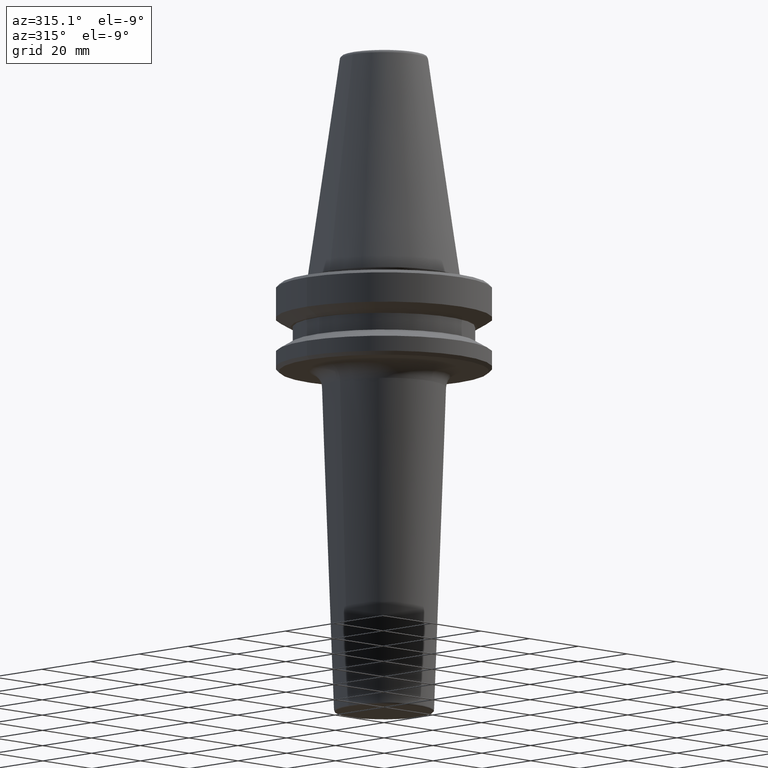
[diagram: clean part render]
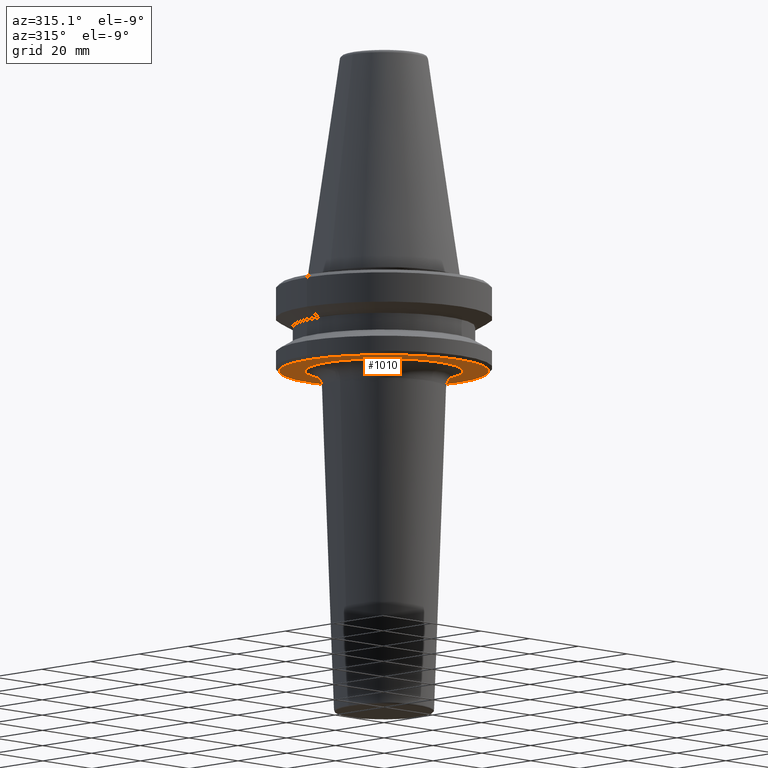
[diagram: same view with one face highlighted and labeled with its STEP entity id]
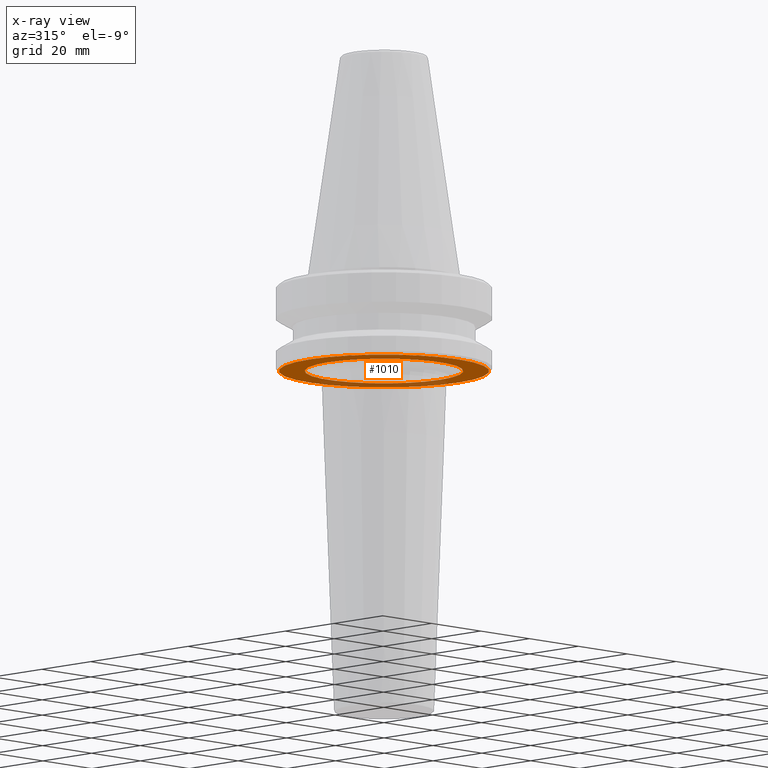
[diagram: x-ray of the same camera — body ghosted, the highlighted face saturated]
A machine part, auxiliary view. The second image highlights one B-rep face of the part: STEP entity #1010.
The next image is the same camera in x-ray: the body ghosted, the highlighted face saturated — about 23% of this face is hidden behind the body in this view.
In plain terms, the highlighted planar face has unit normal (0, -0, 1).
Its self-contained STEP definition (entity closure, byte-faithful):
#2 = DIRECTION ( 'NONE',  ( 1.000000000000000000, 0.0000000000000000000, 0.0000000000000000000 ) ) ;
#13 = PLANE ( 'NONE',  #661 ) ;
#93 = DIRECTION ( 'NONE',  ( 1.000000000000000000, 0.0000000000000000000, 0.0000000000000000000 ) ) ;
#109 = EDGE_CURVE ( 'NONE', #816, #989, #400, .T. ) ;
#125 = CARTESIAN_POINT ( 'NONE',  ( 0.0000000000000000000, 0.0000000000000000000, -92.40000000000802100 ) ) ;
#148 = ORIENTED_EDGE ( 'NONE', *, *, #553, .F. ) ;
#186 = CIRCLE ( 'NONE', #351, 22.99662315975860900 ) ;
#196 = DIRECTION ( 'NONE',  ( 1.000000000000000000, 0.0000000000000000000, 0.0000000000000000000 ) ) ;
#204 = EDGE_CURVE ( 'NONE', #989, #816, #186, .T. ) ;
#220 = CARTESIAN_POINT ( 'NONE',  ( 30.49999999999241900, 0.0000000000000000000, -92.40000000000803500 ) ) ;
#274 = FACE_OUTER_BOUND ( 'NONE', #692, .T. ) ;
#284 = DIRECTION ( 'NONE',  ( -0.0000000000000000000, -0.0000000000000000000, 1.000000000000000000 ) ) ;
#301 = CARTESIAN_POINT ( 'NONE',  ( 0.0000000000000000000, 0.0000000000000000000, -92.40000000000803500 ) ) ;
#310 = CARTESIAN_POINT ( 'NONE',  ( -30.49999999999241900, 3.796405077356336000E-015, -92.40000000000803500 ) ) ;
#336 = AXIS2_PLACEMENT_3D ( 'NONE', #301, #817, #2 ) ;
#351 = AXIS2_PLACEMENT_3D ( 'NONE', #125, #578, #93 ) ;
#400 = CIRCLE ( 'NONE', #528, 22.99662315975860900 ) ;
#407 = VERTEX_POINT ( 'NONE', #310 ) ;
#423 = CARTESIAN_POINT ( 'NONE',  ( 0.0000000000000000000, -1.708974000301187800E-013, -92.40000000000803500 ) ) ;
#431 = FACE_BOUND ( 'NONE', #748, .T. ) ;
#434 = AXIS2_PLACEMENT_3D ( 'NONE', #922, #952, #196 ) ;
#504 = EDGE_CURVE ( 'NONE', #773, #407, #901, .T. ) ;
#505 = ORIENTED_EDGE ( 'NONE', *, *, #204, .T. ) ;
#528 = AXIS2_PLACEMENT_3D ( 'NONE', #756, #284, #673 ) ;
#553 = EDGE_CURVE ( 'NONE', #407, #773, #657, .T. ) ;
#567 = CARTESIAN_POINT ( 'NONE',  ( 22.99662315975860900, 0.0000000000000000000, -92.40000000000803500 ) ) ;
#571 = DIRECTION ( 'NONE',  ( 0.0000000000000000000, -0.0000000000000000000, 1.000000000000000000 ) ) ;
#578 = DIRECTION ( 'NONE',  ( -0.0000000000000000000, -0.0000000000000000000, 1.000000000000000000 ) ) ;
#591 = ORIENTED_EDGE ( 'NONE', *, *, #109, .T. ) ;
#657 = CIRCLE ( 'NONE', #434, 30.49999999999241900 ) ;
#661 = AXIS2_PLACEMENT_3D ( 'NONE', #423, #571, #839 ) ;
#673 = DIRECTION ( 'NONE',  ( 1.000000000000000000, 0.0000000000000000000, 0.0000000000000000000 ) ) ;
#692 = EDGE_LOOP ( 'NONE', ( #1021, #148 ) ) ;
#748 = EDGE_LOOP ( 'NONE', ( #591, #505 ) ) ;
#756 = CARTESIAN_POINT ( 'NONE',  ( 0.0000000000000000000, 0.0000000000000000000, -92.40000000000802100 ) ) ;
#773 = VERTEX_POINT ( 'NONE', #220 ) ;
#780 = CARTESIAN_POINT ( 'NONE',  ( -22.99662315975860900, 2.816274094379627500E-015, -92.40000000000803500 ) ) ;
#816 = VERTEX_POINT ( 'NONE', #567 ) ;
#817 = DIRECTION ( 'NONE',  ( -0.0000000000000000000, -0.0000000000000000000, 1.000000000000000000 ) ) ;
#839 = DIRECTION ( 'NONE',  ( 1.000000000000000000, 0.0000000000000000000, 0.0000000000000000000 ) ) ;
#901 = CIRCLE ( 'NONE', #336, 30.49999999999241900 ) ;
#922 = CARTESIAN_POINT ( 'NONE',  ( 0.0000000000000000000, 0.0000000000000000000, -92.40000000000803500 ) ) ;
#952 = DIRECTION ( 'NONE',  ( -0.0000000000000000000, -0.0000000000000000000, 1.000000000000000000 ) ) ;
#989 = VERTEX_POINT ( 'NONE', #780 ) ;
#1010 = ADVANCED_FACE ( 'NONE', ( #274, #431 ), #13, .F. ) ;
#1021 = ORIENTED_EDGE ( 'NONE', *, *, #504, .F. ) ;